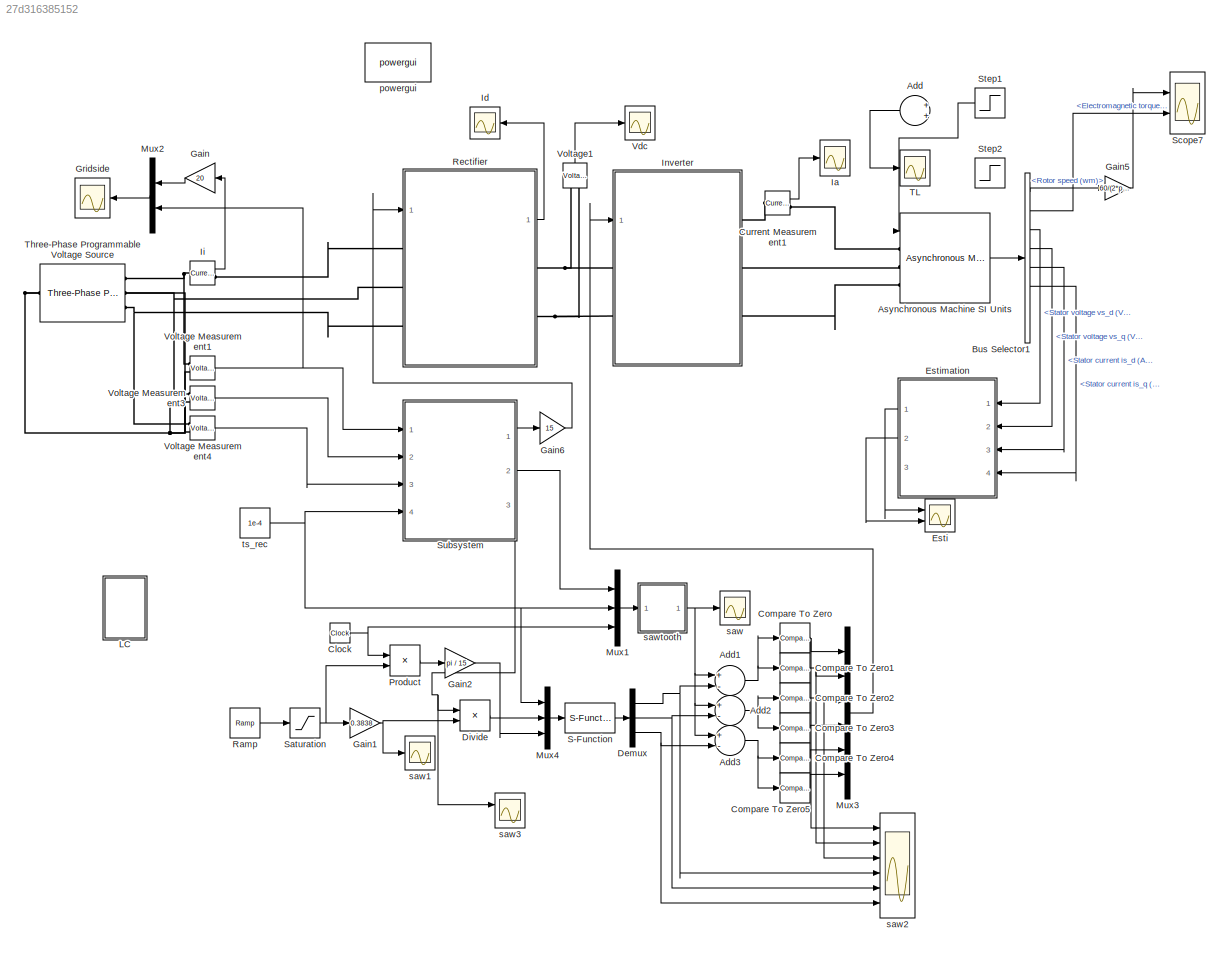
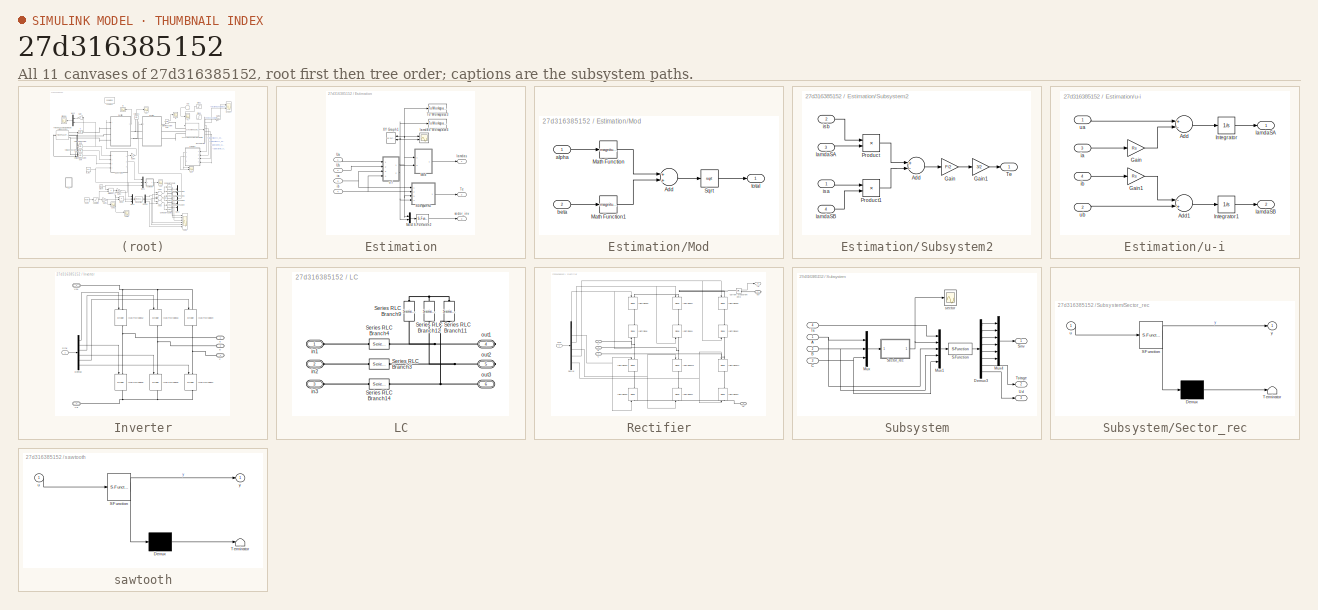
[diagram: thumbnail index - all 11 canvases of the model, root first then tree order]
MODEL slx_27d316385152
KIND model
CONFIG AbsTol = auto
CONFIG EnableMultiTasking = on
CONFIG FixedStep = auto
CONFIG MaxStep = auto
CONFIG MinStep = auto
CONFIG RelTol = 1e-3
CONFIG SampleTimeConstraint = Unconstrained
CONFIG Solver = VariableStepAuto
CONFIG SolverName = VariableStepAuto
CONFIG StartTime = 0.0
CONFIG StopTime = 1
WORKSPACE source: MAT-file member
WORKSPACE Cf = 5e-05
BLOCK [Sum] Add
  InputSameDT = off
  OutDataTypeStr = Inherit: Inherit via internal rule
  Ports = [2, 1]
  SaturateOnIntegerOverflow = off
BLOCK [Sum] Add1
  InputSameDT = off
  Inputs = +-
  OutDataTypeStr = Inherit: Inherit via internal rule
  Ports = [2, 1]
  SaturateOnIntegerOverflow = off
BLOCK [Sum] Add2
  InputSameDT = off
  Inputs = +-
  OutDataTypeStr = Inherit: Inherit via internal rule
  Ports = [2, 1]
  SaturateOnIntegerOverflow = off
BLOCK [Sum] Add3
  InputSameDT = off
  Inputs = +-
  OutDataTypeStr = Inherit: Inherit via internal rule
  Ports = [2, 1]
  SaturateOnIntegerOverflow = off
BLOCK [Reference] Asynchronous Machine SI Units  REF=powerlib/Machines/Asynchronous Machine
SI Units
  Ports = [1, 1, 0, 0, 0, 3]
  SourceBlock = powerlib/Machines/Asynchronous Machine\nSI Units
  SourceType = Asynchronous Machine
BLOCK [BusSelector] Bus Selector1
  OutputSignals = Mechanical.Rotor speed (wm),Mechanical.Electromagnetic torque Te (N*m),Stator measurements.Stator voltage vs_d (V),Stator measurements.Stator voltage vs_q (V),Stator measurements.Stator current is_d (A),Stator measurements.Stator current  is_q (A),Rotor measurements.Rotor flux phir_d (V s),Rotor measurements.Rotor flux phir_q (V s)
  Ports = [1, 8]
BLOCK [Clock] Clock
BLOCK [Reference] Compare To Zero  REF=simulink/Logic and Bit
Operations/Compare
To Zero
  Ports = [1, 1]
  SourceBlock = simulink/Logic and Bit\nOperations/Compare\nTo Zero
  SourceType = Compare To Zero
BLOCK [Reference] Compare To Zero1  REF=simulink/Logic and Bit
Operations/Compare
To Zero
  Ports = [1, 1]
  SourceBlock = simulink/Logic and Bit\nOperations/Compare\nTo Zero
  SourceType = Compare To Zero
BLOCK [Reference] Compare To Zero2  REF=simulink/Logic and Bit
Operations/Compare
To Zero
  Ports = [1, 1]
  SourceBlock = simulink/Logic and Bit\nOperations/Compare\nTo Zero
  SourceType = Compare To Zero
BLOCK [Reference] Compare To Zero3  REF=simulink/Logic and Bit
Operations/Compare
To Zero
  Ports = [1, 1]
  SourceBlock = simulink/Logic and Bit\nOperations/Compare\nTo Zero
  SourceType = Compare To Zero
BLOCK [Reference] Compare To Zero4  REF=simulink/Logic and Bit
Operations/Compare
To Zero
  Ports = [1, 1]
  SourceBlock = simulink/Logic and Bit\nOperations/Compare\nTo Zero
  SourceType = Compare To Zero
BLOCK [Reference] Compare To Zero5  REF=simulink/Logic and Bit
Operations/Compare
To Zero
  Ports = [1, 1]
  SourceBlock = simulink/Logic and Bit\nOperations/Compare\nTo Zero
  SourceType = Compare To Zero
BLOCK [Reference] Current Measurement1  REF=powerlib/Measurements/Current Measurement
  Ports = [0, 1, 0, 0, 0, 1, 1]
  SourceBlock = powerlib/Measurements/Current Measurement
  SourceType = Current Measurement
  UserDataPersistent = on
BLOCK [Demux] Demux
  DisplayOption = bar
  Outputs = 3
  Ports = [1, 3]
BLOCK [Product] Divide
  InputSameDT = off
  Inputs = /*
  OutDataTypeStr = Inherit: Inherit via internal rule
  Ports = [2, 1]
  RndMeth = Floor
  SaturateOnIntegerOverflow = off
BLOCK [Scope] Esti
  NumInputPorts = 2
  Ports = [2]
  ScopeSpecificationString = Simulink.scopes.TimeScopeBlockCfg('CurrentConfiguration', extmgr.ConfigurationSet(extmgr.Configuration('Core','General UI',true),extmgr.Configuration('Core','Source UI',true),extmgr.Configuration('Sources','WiredSimulink',true,'DataLoggingVariableName','ScopeData7'),extmgr.Configuration('Visuals','Time Domain',true,'SerializedDisplays',{struct('MinYLimReal','-0.14729','MaxYLimReal','1.32559','YLab...<+2110ch>
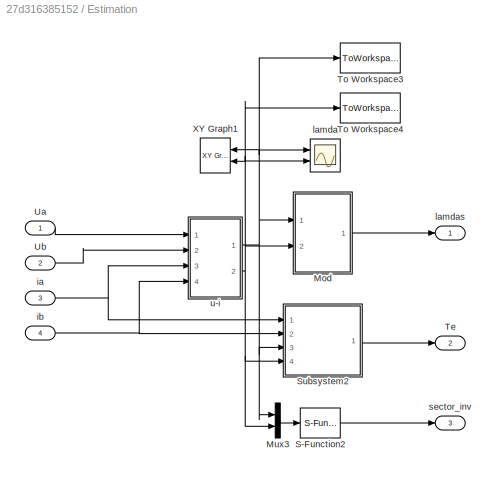
BLOCK [SubSystem] Estimation
  Ports = [4, 3]
  RequestExecContextInheritance = off
  Variant = off
BLOCK [SubSystem] Estimation/Mod
  Ports = [2, 1]
  RequestExecContextInheritance = off
  Variant = off
BLOCK [Sum] Estimation/Mod/Add
  InputSameDT = off
  OutDataTypeStr = Inherit: Inherit via internal rule
  Ports = [2, 1]
  SaturateOnIntegerOverflow = off
BLOCK [Math] Estimation/Mod/Math Function
  Operator = magnitude^2
  Ports = [1, 1]
BLOCK [Math] Estimation/Mod/Math Function1
  Operator = magnitude^2
  Ports = [1, 1]
BLOCK [Sqrt] Estimation/Mod/Sqrt
BLOCK [Inport] Estimation/Mod/alpha
  IconDisplay = Port number
BLOCK [Inport] Estimation/Mod/beta
  IconDisplay = Port number
  Port = 2
BLOCK [Outport] Estimation/Mod/total
  IconDisplay = Port number
BLOCK [Mux] Estimation/Mux3
  DisplayOption = bar
  Inputs = 2
  Ports = [2, 1]
BLOCK [S-Function] Estimation/S-Function2
  EnableBusSupport = off
  FunctionName = sector
  Ports = [1, 1]
  SFcnIsStateOwnerBlock = off
  SFunctionDeploymentMode = off
BLOCK [SubSystem] Estimation/Subsystem2
  Ports = [4, 1]
  RequestExecContextInheritance = off
  Variant = off
BLOCK [Sum] Estimation/Subsystem2/Add
  InputSameDT = off
  Inputs = +-
  OutDataTypeStr = Inherit: Inherit via internal rule
  Ports = [2, 1]
  SaturateOnIntegerOverflow = off
BLOCK [Gain] Estimation/Subsystem2/Gain
  Gain = P/2
  OutDataTypeStr = Inherit: Inherit via internal rule
  ParamDataTypeStr = Inherit: Inherit via internal rule
  SaturateOnIntegerOverflow = off
BLOCK [Gain] Estimation/Subsystem2/Gain1
  Gain = 3/2
  OutDataTypeStr = Inherit: Inherit via internal rule
  ParamDataTypeStr = Inherit: Inherit via internal rule
  SaturateOnIntegerOverflow = off
BLOCK [Product] Estimation/Subsystem2/Product
  InputSameDT = off
  OutDataTypeStr = Inherit: Inherit via internal rule
  Ports = [2, 1]
  RndMeth = Floor
  SaturateOnIntegerOverflow = off
BLOCK [Product] Estimation/Subsystem2/Product1
  InputSameDT = off
  OutDataTypeStr = Inherit: Inherit via internal rule
  Ports = [2, 1]
  RndMeth = Floor
  SaturateOnIntegerOverflow = off
BLOCK [Outport] Estimation/Subsystem2/Te
  IconDisplay = Port number
BLOCK [Inport] Estimation/Subsystem2/isa
  IconDisplay = Port number
BLOCK [Inport] Estimation/Subsystem2/isb
  IconDisplay = Port number
  Port = 2
BLOCK [Inport] Estimation/Subsystem2/lamdaSA
  IconDisplay = Port number
  Port = 3
BLOCK [Inport] Estimation/Subsystem2/lamdaSB
  IconDisplay = Port number
  Port = 4
BLOCK [Outport] Estimation/Te
  IconDisplay = Port number
  Port = 2
BLOCK [ToWorkspace] Estimation/To Workspace3
  FixptAsFi = on
  MaxDataPoints = inf
  Ports = [1]
  SampleTime = -1
  Save2DSignal = 3-D array (concatenate along third dimension)
  SaveFormat = Timeseries
  VariableName = lamdax
BLOCK [ToWorkspace] Estimation/To Workspace4
  FixptAsFi = on
  MaxDataPoints = inf
  Ports = [1]
  SampleTime = -1
  Save2DSignal = 3-D array (concatenate along third dimension)
  SaveFormat = Timeseries
  VariableName = lamday
BLOCK [Inport] Estimation/Ua
  IconDisplay = Port number
BLOCK [Inport] Estimation/Ub
  IconDisplay = Port number
  Port = 2
BLOCK [Reference] Estimation/XY Graph1  REF=simulink/Sinks/XY Graph
  Ports = [2]
  SourceBlock = simulink/Sinks/XY Graph
  SourceType = XY scope.
BLOCK [Inport] Estimation/ia
  IconDisplay = Port number
  Port = 3
BLOCK [Inport] Estimation/ib
  IconDisplay = Port number
  Port = 4
BLOCK [Scope] Estimation/lamda
  NumInputPorts = 2
  Ports = [2]
  ScopeSpecificationString = Simulink.scopes.TimeScopeBlockCfg('CurrentConfiguration', extmgr.ConfigurationSet(extmgr.Configuration('Core','General UI',true),extmgr.Configuration('Core','Source UI',true),extmgr.Configuration('Sources','WiredSimulink',true,'DataLoggingVariableName','ScopeData1','DataLoggingSaveFormat','Array','DataLoggingDecimation','1','DataLoggingDecimateData',true),extmgr.Configuration('Visuals','Time Domai...<+1562ch>
BLOCK [Outport] Estimation/lamdas
  IconDisplay = Port number
BLOCK [Outport] Estimation/sector_inv
  IconDisplay = Port number
  Port = 3
BLOCK [SubSystem] Estimation/u-i
  Ports = [4, 2]
  RequestExecContextInheritance = off
  Variant = off
BLOCK [Sum] Estimation/u-i/Add
  InputSameDT = off
  Inputs = +-
  OutDataTypeStr = Inherit: Inherit via internal rule
  Ports = [2, 1]
  SaturateOnIntegerOverflow = off
BLOCK [Sum] Estimation/u-i/Add1
  InputSameDT = off
  Inputs = -+
  OutDataTypeStr = Inherit: Inherit via internal rule
  Ports = [2, 1]
  SaturateOnIntegerOverflow = off
BLOCK [Gain] Estimation/u-i/Gain
  Gain = Rs
  OutDataTypeStr = Inherit: Inherit via internal rule
  ParamDataTypeStr = Inherit: Inherit via internal rule
  SaturateOnIntegerOverflow = off
BLOCK [Gain] Estimation/u-i/Gain1
  Gain = Rs
  OutDataTypeStr = Inherit: Inherit via internal rule
  ParamDataTypeStr = Inherit: Inherit via internal rule
  SaturateOnIntegerOverflow = off
BLOCK [Integrator] Estimation/u-i/Integrator
  Ports = [1, 1]
BLOCK [Integrator] Estimation/u-i/Integrator1
  Ports = [1, 1]
BLOCK [Inport] Estimation/u-i/ia
  IconDisplay = Port number
  Port = 3
BLOCK [Inport] Estimation/u-i/ib
  IconDisplay = Port number
  Port = 4
BLOCK [Outport] Estimation/u-i/lamdaSA
  IconDisplay = Port number
BLOCK [Outport] Estimation/u-i/lamdaSB
  IconDisplay = Port number
  Port = 2
BLOCK [Inport] Estimation/u-i/ua
  IconDisplay = Port number
BLOCK [Inport] Estimation/u-i/ub
  IconDisplay = Port number
  Port = 2
BLOCK [Gain] Gain
  Gain = 20
  OutDataTypeStr = Inherit: Inherit via internal rule
  ParamDataTypeStr = Inherit: Inherit via internal rule
  SaturateOnIntegerOverflow = off
BLOCK [Gain] Gain1
  Gain = 0.3838
  OutDataTypeStr = Inherit: Inherit via internal rule
  ParamDataTypeStr = Inherit: Inherit via internal rule
  SaturateOnIntegerOverflow = off
BLOCK [Gain] Gain2
  Gain = pi / 15
  OutDataTypeStr = Inherit: Inherit via internal rule
  ParamDataTypeStr = Inherit: Inherit via internal rule
  SaturateOnIntegerOverflow = off
BLOCK [Gain] Gain5
  Gain = 60/(2*pi)
  OutDataTypeStr = Inherit: Inherit via internal rule
  ParamDataTypeStr = Inherit: Inherit via internal rule
  SaturateOnIntegerOverflow = off
BLOCK [Gain] Gain6
  Gain = 15
  OutDataTypeStr = Inherit: Inherit via internal rule
  ParamDataTypeStr = Inherit: Inherit via internal rule
  SaturateOnIntegerOverflow = off
BLOCK [Scope] Gridside
  NumInputPorts = 1
  Ports = [1]
  ScopeSpecificationString = Simulink.scopes.TimeScopeBlockCfg('CurrentConfiguration', extmgr.ConfigurationSet(extmgr.Configuration('Core','General UI',true),extmgr.Configuration('Core','Source UI',true),extmgr.Configuration('Sources','WiredSimulink',true,'DataLogging',true,'DataLoggingVariableName','input','DataLoggingSaveFormat','StructureWithTime','DataLoggingDecimation','1','DataLoggingDecimateData',true),extmgr.Configura...<+1643ch>
BLOCK [Scope] Ia
  NumInputPorts = 1
  Ports = [1]
  ScopeSpecificationString = Simulink.scopes.TimeScopeBlockCfg('CurrentConfiguration', extmgr.ConfigurationSet(extmgr.Configuration('Core','General UI',true),extmgr.Configuration('Core','Source UI',true),extmgr.Configuration('Sources','WiredSimulink',true,'DataLogging',true,'DataLoggingVariableName','output2','DataLoggingSaveFormat','StructureWithTime','DataLoggingDecimation','1','DataLoggingDecimateData',true),extmgr.Configu...<+1750ch>
BLOCK [Scope] Id
  NumInputPorts = 1
  Ports = [1]
  ScopeSpecificationString = Simulink.scopes.TimeScopeBlockCfg('CurrentConfiguration', extmgr.ConfigurationSet(extmgr.Configuration('Core','General UI',true),extmgr.Configuration('Core','Source UI',true),extmgr.Configuration('Sources','WiredSimulink',true,'DataLoggingVariableName','ScopeData1'),extmgr.Configuration('Visuals','Time Domain',true,'SerializedDisplays',{struct('MinYLimReal','-8.28952','MaxYLimReal','17.60417','YLa...<+1443ch>
BLOCK [Reference] Ii  REF=powerlib/Measurements/Current Measurement
  Ports = [0, 1, 0, 0, 0, 1, 1]
  SourceBlock = powerlib/Measurements/Current Measurement
  SourceType = Current Measurement
  UserDataPersistent = on
BLOCK [SubSystem] Inverter
  Ports = [1, 0, 0, 0, 0, 2, 3]
  RequestExecContextInheritance = off
  Variant = off
BLOCK [Demux] Inverter/Demux
  DisplayOption = bar
  Outputs = 6
  Ports = [1, 6]
BLOCK [Reference] Inverter/IGBT//Diode12  REF=powerlib/Power
Electronics/IGBT//Diode
  Ports = [1, 1, 0, 0, 0, 1, 1]
  SourceBlock = powerlib/Power\nElectronics/IGBT//Diode
  SourceType = IGBT/Diode
BLOCK [Reference] Inverter/IGBT//Diode13  REF=powerlib/Power
Electronics/IGBT//Diode
  Ports = [1, 1, 0, 0, 0, 1, 1]
  SourceBlock = powerlib/Power\nElectronics/IGBT//Diode
  SourceType = IGBT/Diode
BLOCK [Reference] Inverter/IGBT//Diode14  REF=powerlib/Power
Electronics/IGBT//Diode
  Ports = [1, 1, 0, 0, 0, 1, 1]
  SourceBlock = powerlib/Power\nElectronics/IGBT//Diode
  SourceType = IGBT/Diode
BLOCK [Reference] Inverter/IGBT//Diode15  REF=powerlib/Power
Electronics/IGBT//Diode
  Ports = [1, 1, 0, 0, 0, 1, 1]
  SourceBlock = powerlib/Power\nElectronics/IGBT//Diode
  SourceType = IGBT/Diode
BLOCK [Reference] Inverter/IGBT//Diode16  REF=powerlib/Power
Electronics/IGBT//Diode
  Ports = [1, 1, 0, 0, 0, 1, 1]
  SourceBlock = powerlib/Power\nElectronics/IGBT//Diode
  SourceType = IGBT/Diode
BLOCK [Reference] Inverter/IGBT//Diode17  REF=powerlib/Power
Electronics/IGBT//Diode
  Ports = [1, 1, 0, 0, 0, 1, 1]
  SourceBlock = powerlib/Power\nElectronics/IGBT//Diode
  SourceType = IGBT/Diode
BLOCK [Inport] Inverter/Sinv
  IconDisplay = Port number
BLOCK [PMIOPort] Inverter/Vd+
  Port = 1
  Side = Left
BLOCK [PMIOPort] Inverter/Vd-
  Port = 5
  Side = Left
BLOCK [PMIOPort] Inverter/a
  Port = 2
  Side = Right
BLOCK [PMIOPort] Inverter/b
  Port = 3
  Side = Right
BLOCK [PMIOPort] Inverter/c
  Port = 4
  Side = Right
BLOCK [SubSystem] LC
  Ports = [0, 0, 0, 0, 0, 3, 3]
  RequestExecContextInheritance = off
  Variant = off
BLOCK [Reference] LC/Series RLC Branch11  REF=powerlib/Elements/Series RLC Branch
  Ports = [0, 0, 0, 0, 0, 1, 1]
  SourceBlock = powerlib/Elements/Series RLC Branch
  SourceType = Series RLC Branch
BLOCK [Reference] LC/Series RLC Branch12  REF=powerlib/Elements/Series RLC Branch
  Ports = [0, 0, 0, 0, 0, 1, 1]
  SourceBlock = powerlib/Elements/Series RLC Branch
  SourceType = Series RLC Branch
BLOCK [Reference] LC/Series RLC Branch14  REF=powerlib/Elements/Series RLC Branch
  Ports = [0, 0, 0, 0, 0, 1, 1]
  SourceBlock = powerlib/Elements/Series RLC Branch
  SourceType = Series RLC Branch
BLOCK [Reference] LC/Series RLC Branch3  REF=powerlib/Elements/Series RLC Branch
  Ports = [0, 0, 0, 0, 0, 1, 1]
  SourceBlock = powerlib/Elements/Series RLC Branch
  SourceType = Series RLC Branch
BLOCK [Reference] LC/Series RLC Branch4  REF=powerlib/Elements/Series RLC Branch
  Ports = [0, 0, 0, 0, 0, 1, 1]
  SourceBlock = powerlib/Elements/Series RLC Branch
  SourceType = Series RLC Branch
BLOCK [Reference] LC/Series RLC Branch9  REF=powerlib/Elements/Series RLC Branch
  Ports = [0, 0, 0, 0, 0, 1, 1]
  SourceBlock = powerlib/Elements/Series RLC Branch
  SourceType = Series RLC Branch
BLOCK [PMIOPort] LC/in1
  Port = 1
  Side = Left
BLOCK [PMIOPort] LC/in2
  Port = 2
  Side = Left
BLOCK [PMIOPort] LC/in3
  Port = 3
  Side = Left
BLOCK [PMIOPort] LC/out1
  Port = 4
  Side = Right
BLOCK [PMIOPort] LC/out2
  Port = 5
  Side = Right
BLOCK [PMIOPort] LC/out3
  Port = 6
  Side = Right
BLOCK [Mux] Mux1
  DisplayOption = bar
  Inputs = 3
  Ports = [3, 1]
BLOCK [Mux] Mux2
  DisplayOption = bar
  Inputs = 2
  Ports = [2, 1]
BLOCK [Mux] Mux3
  DisplayOption = bar
  Inputs = 6
  Ports = [6, 1]
BLOCK [Mux] Mux4
  DisplayOption = bar
  Inputs = 3
  Ports = [3, 1]
BLOCK [Product] Product
  InputSameDT = off
  OutDataTypeStr = Inherit: Inherit via internal rule
  Ports = [2, 1]
  RndMeth = Floor
  SaturateOnIntegerOverflow = off
BLOCK [Reference] Ramp  REF=simulink/Sources/Ramp
  Ports = [0, 1]
  SourceBlock = simulink/Sources/Ramp
  SourceType = Ramp
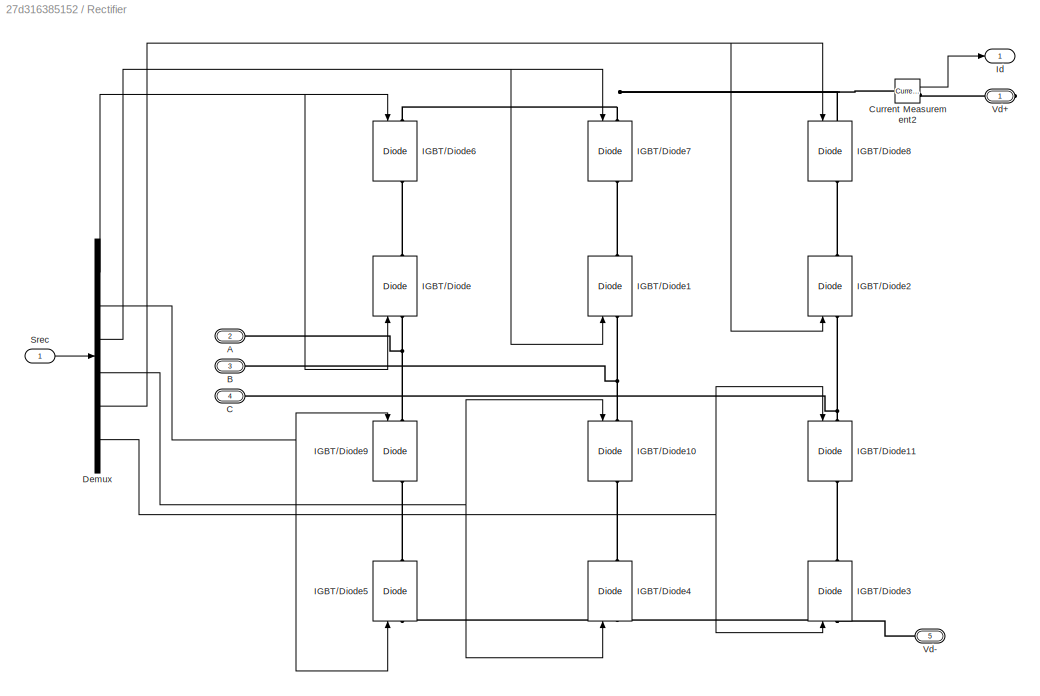
BLOCK [SubSystem] Rectifier
  Ports = [1, 1, 0, 0, 0, 3, 2]
  RequestExecContextInheritance = off
  Variant = off
BLOCK [PMIOPort] Rectifier/A
  Port = 2
  Side = Left
BLOCK [PMIOPort] Rectifier/B
  Port = 3
  Side = Left
BLOCK [PMIOPort] Rectifier/C 
  Port = 4
  Side = Left
BLOCK [Reference] Rectifier/Current Measurement2  REF=powerlib/Measurements/Current Measurement
  Ports = [0, 1, 0, 0, 0, 1, 1]
  SourceBlock = powerlib/Measurements/Current Measurement
  SourceType = Current Measurement
  UserDataPersistent = on
BLOCK [Demux] Rectifier/Demux
  DisplayOption = bar
  Outputs = 6
  Ports = [1, 6]
BLOCK [Reference] Rectifier/IGBT//Diode  REF=powerlib/Power
Electronics/IGBT//Diode
  Ports = [1, 1, 0, 0, 0, 1, 1]
  SourceBlock = powerlib/Power\nElectronics/IGBT//Diode
  SourceType = IGBT/Diode
BLOCK [Reference] Rectifier/IGBT//Diode1  REF=powerlib/Power
Electronics/IGBT//Diode
  Ports = [1, 1, 0, 0, 0, 1, 1]
  SourceBlock = powerlib/Power\nElectronics/IGBT//Diode
  SourceType = IGBT/Diode
BLOCK [Reference] Rectifier/IGBT//Diode10  REF=powerlib/Power
Electronics/IGBT//Diode
  Ports = [1, 1, 0, 0, 0, 1, 1]
  SourceBlock = powerlib/Power\nElectronics/IGBT//Diode
  SourceType = IGBT/Diode
BLOCK [Reference] Rectifier/IGBT//Diode11  REF=powerlib/Power
Electronics/IGBT//Diode
  Ports = [1, 1, 0, 0, 0, 1, 1]
  SourceBlock = powerlib/Power\nElectronics/IGBT//Diode
  SourceType = IGBT/Diode
BLOCK [Reference] Rectifier/IGBT//Diode2  REF=powerlib/Power
Electronics/IGBT//Diode
  Ports = [1, 1, 0, 0, 0, 1, 1]
  SourceBlock = powerlib/Power\nElectronics/IGBT//Diode
  SourceType = IGBT/Diode
BLOCK [Reference] Rectifier/IGBT//Diode3  REF=powerlib/Power
Electronics/IGBT//Diode
  Ports = [1, 1, 0, 0, 0, 1, 1]
  SourceBlock = powerlib/Power\nElectronics/IGBT//Diode
  SourceType = IGBT/Diode
BLOCK [Reference] Rectifier/IGBT//Diode4  REF=powerlib/Power
Electronics/IGBT//Diode
  Ports = [1, 1, 0, 0, 0, 1, 1]
  SourceBlock = powerlib/Power\nElectronics/IGBT//Diode
  SourceType = IGBT/Diode
BLOCK [Reference] Rectifier/IGBT//Diode5  REF=powerlib/Power
Electronics/IGBT//Diode
  Ports = [1, 1, 0, 0, 0, 1, 1]
  SourceBlock = powerlib/Power\nElectronics/IGBT//Diode
  SourceType = IGBT/Diode
BLOCK [Reference] Rectifier/IGBT//Diode6  REF=powerlib/Power
Electronics/IGBT//Diode
  Ports = [1, 1, 0, 0, 0, 1, 1]
  SourceBlock = powerlib/Power\nElectronics/IGBT//Diode
  SourceType = IGBT/Diode
BLOCK [Reference] Rectifier/IGBT//Diode7  REF=powerlib/Power
Electronics/IGBT//Diode
  Ports = [1, 1, 0, 0, 0, 1, 1]
  SourceBlock = powerlib/Power\nElectronics/IGBT//Diode
  SourceType = IGBT/Diode
BLOCK [Reference] Rectifier/IGBT//Diode8  REF=powerlib/Power
Electronics/IGBT//Diode
  Ports = [1, 1, 0, 0, 0, 1, 1]
  SourceBlock = powerlib/Power\nElectronics/IGBT//Diode
  SourceType = IGBT/Diode
BLOCK [Reference] Rectifier/IGBT//Diode9  REF=powerlib/Power
Electronics/IGBT//Diode
  Ports = [1, 1, 0, 0, 0, 1, 1]
  SourceBlock = powerlib/Power\nElectronics/IGBT//Diode
  SourceType = IGBT/Diode
BLOCK [Outport] Rectifier/Id
  IconDisplay = Port number
BLOCK [Inport] Rectifier/Srec
  IconDisplay = Port number
BLOCK [PMIOPort] Rectifier/Vd+
  Port = 1
  Side = Right
BLOCK [PMIOPort] Rectifier/Vd-
  Port = 5
  Side = Right
BLOCK [S-Function] S-Function
  EnableBusSupport = off
  FunctionName = SVM2
  Ports = [1, 1]
  SFcnIsStateOwnerBlock = off
  SFunctionDeploymentMode = off
BLOCK [Saturate] Saturation
  InputPortMap = u0
  LowerLimit = 5
  Ports = [1, 1]
  UpperLimit = 600
BLOCK [Scope] Scope7
  NumInputPorts = 2
  Ports = [2]
  ScopeSpecificationString = Simulink.scopes.TimeScopeBlockCfg('CurrentConfiguration', extmgr.ConfigurationSet(extmgr.Configuration('Core','General UI',true),extmgr.Configuration('Core','Source UI',true),extmgr.Configuration('Sources','WiredSimulink',true,'DataLoggingVariableName','ScopeData1'),extmgr.Configuration('Visuals','Time Domain',true,'SerializedDisplays',{struct('MinYLimReal','514.97711','MaxYLimReal','616.88552','Y...<+2144ch>
BLOCK [Step] Step1
  After = 5
  SampleTime = 0
  Time = 0.4
BLOCK [Step] Step2
  After = 5
  SampleTime = 0
  Time = 0.7
BLOCK [SubSystem] Subsystem
  Ports = [4, 3]
  RequestExecContextInheritance = off
  Variant = off
BLOCK [Inport] Subsystem/A
  IconDisplay = Port number
BLOCK [Inport] Subsystem/B
  IconDisplay = Port number
  Port = 2
BLOCK [Inport] Subsystem/C
  IconDisplay = Port number
  Port = 3
BLOCK [Demux] Subsystem/Demux3
  DisplayOption = bar
  Outputs = 8
  Ports = [1, 8]
BLOCK [Mux] Subsystem/Mux
  DisplayOption = bar
  Inputs = 3
  Ports = [3, 1]
BLOCK [Mux] Subsystem/Mux1
  DisplayOption = bar
  Inputs = 5
  Ports = [5, 1]
BLOCK [Mux] Subsystem/Mux4
  DisplayOption = bar
  Inputs = 6
  Ports = [6, 1]
BLOCK [S-Function] Subsystem/S-Function
  EnableBusSupport = off
  FunctionName = RectOpenloop
  Ports = [1, 1]
  SFcnIsStateOwnerBlock = off
  SFunctionDeploymentMode = off
BLOCK [SubSystem] Subsystem/Sector_rec
  ErrorFcn = Stateflow.Translate.translate
  PermitHierarchicalResolution = ExplicitOnly
  Ports = [1, 1]
  RequestExecContextInheritance = off
  SFBlockType = MATLAB Function
  TreatAsAtomicUnit = on
  Variant = off
BLOCK [Demux] Subsystem/Sector_rec/ Demux 
  Outputs = 1
  Ports = [1, 1]
BLOCK [S-Function] Subsystem/Sector_rec/ SFunction 
  EnableBusSupport = on
  FunctionName = sf_sfun
  PortCounts = [1 2]
  Ports = [1, 2]
  SFcnIsStateOwnerBlock = off
  SFunctionDeploymentMode = off
  Tag = Stateflow S-Function TSMCOpenloop 2
BLOCK [Terminator] Subsystem/Sector_rec/ Terminator 
BLOCK [Inport] Subsystem/Sector_rec/u
  IconDisplay = Port number
BLOCK [Outport] Subsystem/Sector_rec/y
  IconDisplay = Port number
BLOCK [Outport] Subsystem/Sinv
  IconDisplay = Port number
BLOCK [Inport] Subsystem/Ts
  IconDisplay = Port number
  Port = 4
BLOCK [Outport] Subsystem/Tstage
  IconDisplay = Port number
  Port = 2
BLOCK [Outport] Subsystem/Ud
  IconDisplay = Port number
  Port = 3
BLOCK [Scope] Subsystem/sector
  NumInputPorts = 1
  Ports = [1]
  ScopeSpecificationString = Simulink.scopes.TimeScopeBlockCfg('CurrentConfiguration', extmgr.ConfigurationSet(extmgr.Configuration('Core','General UI',true),extmgr.Configuration('Core','Source UI',true),extmgr.Configuration('Sources','WiredSimulink',true,'DataLogging',true,'DataLoggingVariableName','input1','DataLoggingSaveFormat','StructureWithTime','DataLoggingDecimation','1','DataLoggingDecimateData',true),extmgr.Configur...<+1720ch>
BLOCK [Scope] TL
  NumInputPorts = 1
  Ports = [1]
  ScopeSpecificationString = Simulink.scopes.TimeScopeBlockCfg('CurrentConfiguration', extmgr.ConfigurationSet(extmgr.Configuration('Core','General UI',true),extmgr.Configuration('Core','Source UI',true),extmgr.Configuration('Sources','WiredSimulink',true,'DataLoggingVariableName','ScopeData6'),extmgr.Configuration('Visuals','Time Domain',true,'SerializedDisplays',{struct('MinYLimReal','-1.00000','MaxYLimReal','1.00000','YLab...<+1362ch>
BLOCK [Reference] Three-Phase Programmable Voltage Source  REF=powerlib/Electrical
Sources/Three-Phase
Programmable
Voltage Source
  Ports = [0, 0, 0, 0, 0, 1, 3]
  SourceBlock = powerlib/Electrical\nSources/Three-Phase\nProgrammable\nVoltage Source
  SourceType = Three-Phase Programmable Voltage Source
BLOCK [Scope] Vdc
  NumInputPorts = 1
  Ports = [1]
  ScopeSpecificationString = Simulink.scopes.TimeScopeBlockCfg('CurrentConfiguration', extmgr.ConfigurationSet(extmgr.Configuration('Core','General UI',true),extmgr.Configuration('Core','Source UI',true),extmgr.Configuration('Sources','WiredSimulink',true,'DataLogging',true,'DataLoggingVariableName','Rect','DataLoggingSaveFormat','StructureWithTime','DataLoggingDecimation','1','DataLoggingDecimateData',true),extmgr.Configurat...<+1743ch>
BLOCK [Reference] Voltage Measurement1  REF=powerlib/Measurements/Voltage Measurement
  Ports = [0, 1, 0, 0, 0, 2]
  SourceBlock = powerlib/Measurements/Voltage Measurement
  SourceType = Voltage Measurement
BLOCK [Reference] Voltage Measurement3  REF=powerlib/Measurements/Voltage Measurement
  Ports = [0, 1, 0, 0, 0, 2]
  SourceBlock = powerlib/Measurements/Voltage Measurement
  SourceType = Voltage Measurement
BLOCK [Reference] Voltage Measurement4  REF=powerlib/Measurements/Voltage Measurement
  Ports = [0, 1, 0, 0, 0, 2]
  SourceBlock = powerlib/Measurements/Voltage Measurement
  SourceType = Voltage Measurement
BLOCK [Reference] Voltage1  REF=powerlib/Measurements/Voltage Measurement
  Ports = [0, 1, 0, 0, 0, 2]
  SourceBlock = powerlib/Measurements/Voltage Measurement
  SourceType = Voltage Measurement
  UserDataPersistent = on
BLOCK [Reference] powergui  REF=powerlib/powergui
  Ports = []
  Priority = 1
  SourceBlock = powerlib/powergui
  SourceType = PSB option menu block
BLOCK [Scope] saw
  NumInputPorts = 1
  Ports = [1]
  ScopeSpecificationString = Simulink.scopes.TimeScopeBlockCfg('CurrentConfiguration', extmgr.ConfigurationSet(extmgr.Configuration('Core','General UI',true),extmgr.Configuration('Core','Source UI',true),extmgr.Configuration('Sources','WiredSimulink',true,'DataLoggingVariableName','ScopeData1'),extmgr.Configuration('Visuals','Time Domain',true,'SerializedDisplays',{struct('MinYLimReal','-0.125','MaxYLimReal','1.125','YLabelRe...<+1426ch>
BLOCK [Scope] saw1
  NumInputPorts = 1
  Ports = [1]
  ScopeSpecificationString = Simulink.scopes.TimeScopeBlockCfg('CurrentConfiguration', extmgr.ConfigurationSet(extmgr.Configuration('Core','General UI',true),extmgr.Configuration('Core','Source UI',true),extmgr.Configuration('Sources','WiredSimulink',true,'DataLoggingVariableName','ScopeData2'),extmgr.Configuration('Visuals','Time Domain',true,'SerializedDisplays',{struct('MinYLimReal','-38.5079','MaxYLimReal','442.77108','YL...<+1443ch>
BLOCK [Scope] saw2
  NumInputPorts = 6
  Ports = [6]
  ScopeSpecificationString = Simulink.scopes.TimeScopeBlockCfg('CurrentConfiguration', extmgr.ConfigurationSet(extmgr.Configuration('Core','General UI',true),extmgr.Configuration('Core','Source UI',true),extmgr.Configuration('Sources','WiredSimulink',true,'DataLoggingVariableName','ScopeData3'),extmgr.Configuration('Visuals','Time Domain',true,'SerializedDisplays',{struct('MinYLimReal','-0.125','MaxYLimReal','1.125','YLabelRe...<+4979ch>
BLOCK [Scope] saw3
  NumInputPorts = 2
  Ports = [2]
  ScopeSpecificationString = Simulink.scopes.TimeScopeBlockCfg('CurrentConfiguration', extmgr.ConfigurationSet(extmgr.Configuration('Core','General UI',true),extmgr.Configuration('Core','Source UI',true),extmgr.Configuration('Sources','WiredSimulink',true,'DataLoggingVariableName','ScopeData4'),extmgr.Configuration('Visuals','Time Domain',true,'SerializedDisplays',{struct('MinYLimReal','418.08177','MaxYLimReal','568.39079','Y...<+1467ch>
BLOCK [SubSystem] sawtooth
  ErrorFcn = Stateflow.Translate.translate
  PermitHierarchicalResolution = ExplicitOnly
  Ports = [1, 1]
  RequestExecContextInheritance = off
  SFBlockType = MATLAB Function
  TreatAsAtomicUnit = on
  Variant = off
BLOCK [Demux] sawtooth/ Demux 
  Outputs = 1
  Ports = [1, 1]
BLOCK [S-Function] sawtooth/ SFunction 
  EnableBusSupport = on
  FunctionName = sf_sfun
  PortCounts = [1 2]
  Ports = [1, 2]
  SFcnIsStateOwnerBlock = off
  SFunctionDeploymentMode = off
  Tag = Stateflow S-Function TSMCOpenloop 1
BLOCK [Terminator] sawtooth/ Terminator 
BLOCK [Inport] sawtooth/u
  IconDisplay = Port number
BLOCK [Outport] sawtooth/y
  IconDisplay = Port number
BLOCK [Constant] ts_rec
  Value = 1e-4
NET Add1:1 -> Compare To Zero1:1, Compare To Zero:1
NET Add2:1 -> Compare To Zero2:1, Compare To Zero3:1
NET Add3:1 -> Compare To Zero4:1, Compare To Zero5:1
LINE Add:1 -> TL:1
LINE Asynchronous Machine SI Units:1 -> Bus Selector1:1
LINE Bus Selector1:1 -> Gain5:1
LINE Bus Selector1:2 -> Scope7:2
LINE Bus Selector1:3 -> Estimation:1
LINE Bus Selector1:4 -> Estimation:2
LINE Bus Selector1:5 -> Estimation:3
LINE Bus Selector1:6 -> Estimation:4
NET Clock:1 -> Mux1:3, Product:1
NET Compare To Zero1:1 -> Mux3:2, saw2:2
NET Compare To Zero2:1 -> Mux3:3, saw2:3
LINE Compare To Zero3:1 -> Mux3:4
LINE Compare To Zero4:1 -> Mux3:5
LINE Compare To Zero5:1 -> Mux3:6
NET Compare To Zero:1 -> Mux3:1, saw2:1
LINE Current Measurement1:1 -> Ia:1
NET Demux:1 -> Add1:2, saw2:4
NET Demux:2 -> Add2:2, saw2:5
NET Demux:3 -> Add3:2, saw2:6
LINE Divide:1 -> Mux4:2
LINE Estimation/Mod/Add:1 -> Estimation/Mod/Sqrt:1
LINE Estimation/Mod/Math Function1:1 -> Estimation/Mod/Add:2
LINE Estimation/Mod/Math Function:1 -> Estimation/Mod/Add:1
LINE Estimation/Mod/Sqrt:1 -> Estimation/Mod/total:1
LINE Estimation/Mod/alpha:1 -> Estimation/Mod/Math Function:1
LINE Estimation/Mod/beta:1 -> Estimation/Mod/Math Function1:1
LINE Estimation/Mod:1 -> Estimation/lamdas:1
LINE Estimation/Mux3:1 -> Estimation/S-Function2:1
LINE Estimation/S-Function2:1 -> Estimation/sector_inv:1
LINE Estimation/Subsystem2/Add:1 -> Estimation/Subsystem2/Gain:1
LINE Estimation/Subsystem2/Gain1:1 -> Estimation/Subsystem2/Te:1
LINE Estimation/Subsystem2/Gain:1 -> Estimation/Subsystem2/Gain1:1
LINE Estimation/Subsystem2/Product1:1 -> Estimation/Subsystem2/Add:2
LINE Estimation/Subsystem2/Product:1 -> Estimation/Subsystem2/Add:1
LINE Estimation/Subsystem2/isa:1 -> Estimation/Subsystem2/Product1:1
LINE Estimation/Subsystem2/isb:1 -> Estimation/Subsystem2/Product:1
LINE Estimation/Subsystem2/lamdaSA:1 -> Estimation/Subsystem2/Product:2
LINE Estimation/Subsystem2/lamdaSB:1 -> Estimation/Subsystem2/Product1:2
LINE Estimation/Subsystem2:1 -> Estimation/Te:1
LINE Estimation/Ua:1 -> Estimation/u-i:1
LINE Estimation/Ub:1 -> Estimation/u-i:2
NET Estimation/ia:1 -> Estimation/Subsystem2:1, Estimation/u-i:3
NET Estimation/ib:1 -> Estimation/Subsystem2:2, Estimation/u-i:4
LINE Estimation/u-i/Add1:1 -> Estimation/u-i/Integrator1:1
LINE Estimation/u-i/Add:1 -> Estimation/u-i/Integrator:1
LINE Estimation/u-i/Gain1:1 -> Estimation/u-i/Add1:1
LINE Estimation/u-i/Gain:1 -> Estimation/u-i/Add:2
LINE Estimation/u-i/Integrator1:1 -> Estimation/u-i/lamdaSB:1
LINE Estimation/u-i/Integrator:1 -> Estimation/u-i/lamdaSA:1
LINE Estimation/u-i/ia:1 -> Estimation/u-i/Gain:1
LINE Estimation/u-i/ib:1 -> Estimation/u-i/Gain1:1
LINE Estimation/u-i/ua:1 -> Estimation/u-i/Add:1
LINE Estimation/u-i/ub:1 -> Estimation/u-i/Add1:2
NET Estimation/u-i:1 -> Estimation/Mod:1, Estimation/Mux3:1, Estimation/Subsystem2:3, Estimation/To Workspace3:1, Estimation/XY Graph1:1, Estimation/lamda:1
NET Estimation/u-i:2 -> Estimation/Mod:2, Estimation/Mux3:2, Estimation/Subsystem2:4, Estimation/To Workspace4:1, Estimation/XY Graph1:2, Estimation/lamda:2
LINE Estimation:1 -> Esti:1
LINE Estimation:2 -> Esti:2
NET Gain1:1 -> Divide:2, saw1:1
LINE Gain2:1 -> Mux4:3
LINE Gain5:1 -> Scope7:1
LINE Gain6:1 -> Rectifier:1
LINE Gain:1 -> Mux2:1
LINE Ii:1 -> Gain:1
LINE Inverter/Demux:1 -> Inverter/IGBT//Diode12:1
LINE Inverter/Demux:2 -> Inverter/IGBT//Diode15:1
LINE Inverter/Demux:3 -> Inverter/IGBT//Diode13:1
LINE Inverter/Demux:4 -> Inverter/IGBT//Diode16:1
LINE Inverter/Demux:5 -> Inverter/IGBT//Diode14:1
LINE Inverter/Demux:6 -> Inverter/IGBT//Diode17:1
LINE Inverter/Sinv:1 -> Inverter/Demux:1
LINE Mux1:1 -> sawtooth:1
LINE Mux2:1 -> Gridside:1
LINE Mux3:1 -> Inverter:1
LINE Mux4:1 -> S-Function:1
LINE Product:1 -> Gain2:1
LINE Ramp:1 -> Saturation:1
LINE Rectifier/Current Measurement2:1 -> Rectifier/Id:1
NET Rectifier/Demux:1 -> Rectifier/IGBT//Diode6:1, Rectifier/IGBT//Diode:1
NET Rectifier/Demux:2 -> Rectifier/IGBT//Diode5:1, Rectifier/IGBT//Diode9:1
NET Rectifier/Demux:3 -> Rectifier/IGBT//Diode1:1, Rectifier/IGBT//Diode7:1
NET Rectifier/Demux:4 -> Rectifier/IGBT//Diode10:1, Rectifier/IGBT//Diode4:1
NET Rectifier/Demux:5 -> Rectifier/IGBT//Diode2:1, Rectifier/IGBT//Diode8:1
NET Rectifier/Demux:6 -> Rectifier/IGBT//Diode11:1, Rectifier/IGBT//Diode3:1
LINE Rectifier/Srec:1 -> Rectifier/Demux:1
LINE Rectifier:1 -> Id:1
LINE S-Function:1 -> Demux:1
NET Saturation:1 -> Gain1:1, Product:2
LINE Step1:1 -> Asynchronous Machine SI Units:1
NET Subsystem/A:1 -> Subsystem/Mux1:3, Subsystem/Mux:1
NET Subsystem/B:1 -> Subsystem/Mux1:4, Subsystem/Mux:2
NET Subsystem/C:1 -> Subsystem/Mux1:5, Subsystem/Mux:3
LINE Subsystem/Demux3:1 -> Subsystem/Mux4:1
LINE Subsystem/Demux3:2 -> Subsystem/Mux4:2
LINE Subsystem/Demux3:3 -> Subsystem/Mux4:3
LINE Subsystem/Demux3:4 -> Subsystem/Mux4:4
LINE Subsystem/Demux3:5 -> Subsystem/Mux4:5
LINE Subsystem/Demux3:6 -> Subsystem/Mux4:6
LINE Subsystem/Demux3:7 -> Subsystem/Tstage:1
LINE Subsystem/Demux3:8 -> Subsystem/Ud:1
LINE Subsystem/Mux1:1 -> Subsystem/S-Function:1
LINE Subsystem/Mux4:1 -> Subsystem/Sinv:1
LINE Subsystem/Mux:1 -> Subsystem/Sector_rec:1
LINE Subsystem/S-Function:1 -> Subsystem/Demux3:1
NET Subsystem/Sector_rec:1 -> Subsystem/Mux1:2, Subsystem/sector:1
LINE Subsystem/Ts:1 -> Subsystem/Mux1:1
LINE Subsystem:1 -> Gain6:1
LINE Subsystem:2 -> Mux1:1
NET Subsystem:3 -> Divide:1, saw3:1
NET Voltage Measurement1:1 -> Mux2:2, Subsystem:1
LINE Voltage Measurement3:1 -> Subsystem:2
LINE Voltage Measurement4:1 -> Subsystem:3
LINE Voltage1:1 -> Vdc:1
NET sawtooth:1 -> Add1:1, Add2:1, Add3:1, saw:1
NET ts_rec:1 -> Mux1:2, Mux4:1, Subsystem:4
PLINE Asynchronous Machine SI Units:LConn1 -- Current Measurement1:RConn1
PLINE Asynchronous Machine SI Units:LConn2 -- Inverter:RConn2
PLINE Asynchronous Machine SI Units:LConn3 -- Inverter:RConn3
PLINE Current Measurement1:LConn1 -- Inverter:RConn1
PNET net1: Ii:LConn1 -- Three-Phase Programmable Voltage Source:RConn1 -- Voltage Measurement1:LConn1
PLINE Ii:RConn1 -- Rectifier:LConn1
PNET net2: Inverter/IGBT//Diode12:LConn1 -- Inverter/IGBT//Diode13:LConn1 -- Inverter/IGBT//Diode14:LConn1 -- Inverter/Vd+:RConn1
PNET net3: Inverter/IGBT//Diode12:RConn1 -- Inverter/IGBT//Diode15:LConn1 -- Inverter/a:RConn1
PNET net4: Inverter/IGBT//Diode13:RConn1 -- Inverter/IGBT//Diode16:LConn1 -- Inverter/b:RConn1
PNET net5: Inverter/IGBT//Diode14:RConn1 -- Inverter/IGBT//Diode17:LConn1 -- Inverter/c:RConn1
PNET net6: Inverter/IGBT//Diode15:RConn1 -- Inverter/IGBT//Diode16:RConn1 -- Inverter/IGBT//Diode17:RConn1 -- Inverter/Vd-:RConn1
PNET net7: Inverter:LConn1 -- Rectifier:RConn1 -- Voltage1:LConn1
PNET net8: Inverter:LConn2 -- Rectifier:RConn2 -- Voltage1:LConn2
PNET net9: LC/Series RLC Branch11:LConn1 -- LC/Series RLC Branch14:RConn1 -- LC/out3:RConn1
PNET net10: LC/Series RLC Branch11:RConn1 -- LC/Series RLC Branch12:RConn1 -- LC/Series RLC Branch9:RConn1
PNET net11: LC/Series RLC Branch12:LConn1 -- LC/Series RLC Branch3:RConn1 -- LC/out2:RConn1
PLINE LC/Series RLC Branch14:LConn1 -- LC/in3:RConn1
PLINE LC/Series RLC Branch3:LConn1 -- LC/in2:RConn1
PLINE LC/Series RLC Branch4:LConn1 -- LC/in1:RConn1
PNET net12: LC/Series RLC Branch4:RConn1 -- LC/Series RLC Branch9:LConn1 -- LC/out1:RConn1
PNET net13: Rectifier/A:RConn1 -- Rectifier/IGBT//Diode9:LConn1 -- Rectifier/IGBT//Diode:LConn1
PNET net14: Rectifier/B:RConn1 -- Rectifier/IGBT//Diode10:LConn1 -- Rectifier/IGBT//Diode1:LConn1
PNET net15: Rectifier/C :RConn1 -- Rectifier/IGBT//Diode11:LConn1 -- Rectifier/IGBT//Diode2:LConn1
PNET net16: Rectifier/Current Measurement2:LConn1 -- Rectifier/IGBT//Diode6:LConn1 -- Rectifier/IGBT//Diode7:LConn1 -- Rectifier/IGBT//Diode8:LConn1
PLINE Rectifier/Current Measurement2:RConn1 -- Rectifier/Vd+:RConn1
PLINE Rectifier/IGBT//Diode10:RConn1 -- Rectifier/IGBT//Diode4:RConn1
PLINE Rectifier/IGBT//Diode11:RConn1 -- Rectifier/IGBT//Diode3:RConn1
PLINE Rectifier/IGBT//Diode1:RConn1 -- Rectifier/IGBT//Diode7:RConn1
PLINE Rectifier/IGBT//Diode2:RConn1 -- Rectifier/IGBT//Diode8:RConn1
PNET net17: Rectifier/IGBT//Diode3:LConn1 -- Rectifier/IGBT//Diode4:LConn1 -- Rectifier/IGBT//Diode5:LConn1 -- Rectifier/Vd-:RConn1
PLINE Rectifier/IGBT//Diode5:RConn1 -- Rectifier/IGBT//Diode9:RConn1
PLINE Rectifier/IGBT//Diode6:RConn1 -- Rectifier/IGBT//Diode:RConn1
PNET net18: Rectifier:LConn2 -- Three-Phase Programmable Voltage Source:RConn2 -- Voltage Measurement3:LConn1
PNET net19: Rectifier:LConn3 -- Three-Phase Programmable Voltage Source:RConn3 -- Voltage Measurement4:LConn1
PNET net20: Three-Phase Programmable Voltage Source:LConn1 -- Voltage Measurement1:LConn2 -- Voltage Measurement3:LConn2 -- Voltage Measurement4:LConn2
note: NET lines group one-source signal fan-out (src -> all destinations, sorted); 1:1 wires keep LINE; PNET lines group multi-terminal physical nets as a canonical sorted terminal list (undirected conserving connections); 2-terminal nets keep the pairwise PLINE form
CHART sawtooth states=1 transitions=1
  STATE_LABEL 'eML_blk_kernel()'
  STATE_LABEL 'SCRIPT:\nfunction y = fcn(u)\nratio = u(1);\nTs = u(2);\nclk = u(3);\ntc = mod(clk, Ts);\n\nif ratio * Ts < 10e-6\n    ratio = 10e-6 / Ts;\nelseif ratio * Ts > Ts - 10e-6\n    ratio = 1 - 10e-6 / Ts;\nend\n\nif tc < Ts * ratio\n    y = 1 / (Ts * ratio) * tc;\nelse\n    y = 1 / (Ts - Ts * ratio) * (Ts - tc);\nend\n'
CHART Subsystem/Sector_rec states=1 transitions=1
  STATE_LABEL 'eML_blk_kernel()'
  STATE_LABEL 'SCRIPT:\nfunction y = fcn(u)\nif (u(1) > 0 && u(2) < 0 && u(3) <= 0)\n    y = 1;\nelseif (u(1) > 0 && u(2) >= 0 && u(3) < 0)\n    y = 2;\nelseif (u(1) <= 0 && u(2) > 0 && u(3) < 0)\n    y = 3;\nelseif (u(1) < 0 && u(2) > 0 && u(3) >= 0)\n    y = 4;\nelseif (u(1) < 0 && u(2) <= 0 && u(3) > 0)\n    y = 5;\nelse\n    y = 6;\nend'
